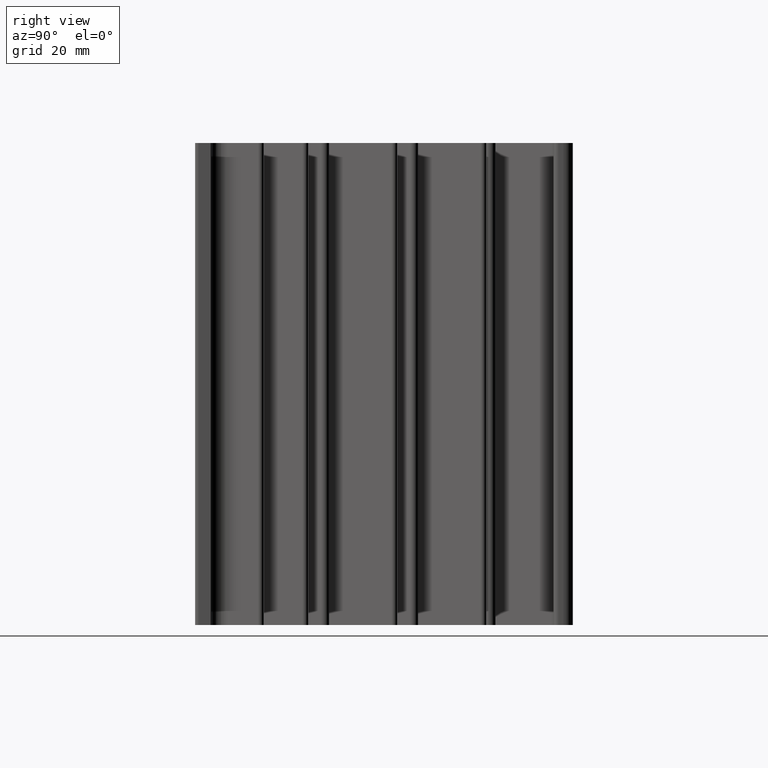
[diagram: clean part render]
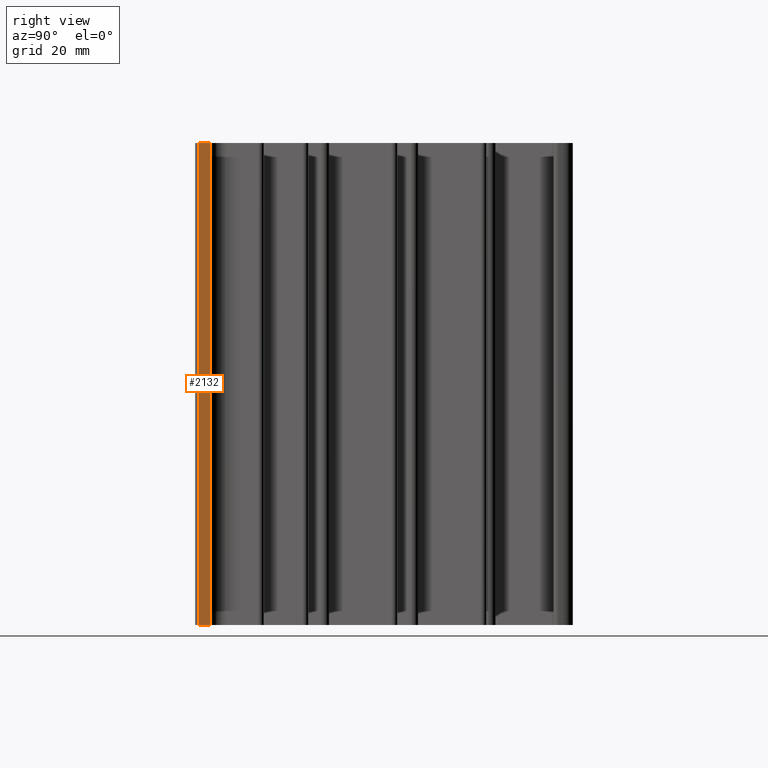
[diagram: same view with one face highlighted and labeled with its STEP entity id]
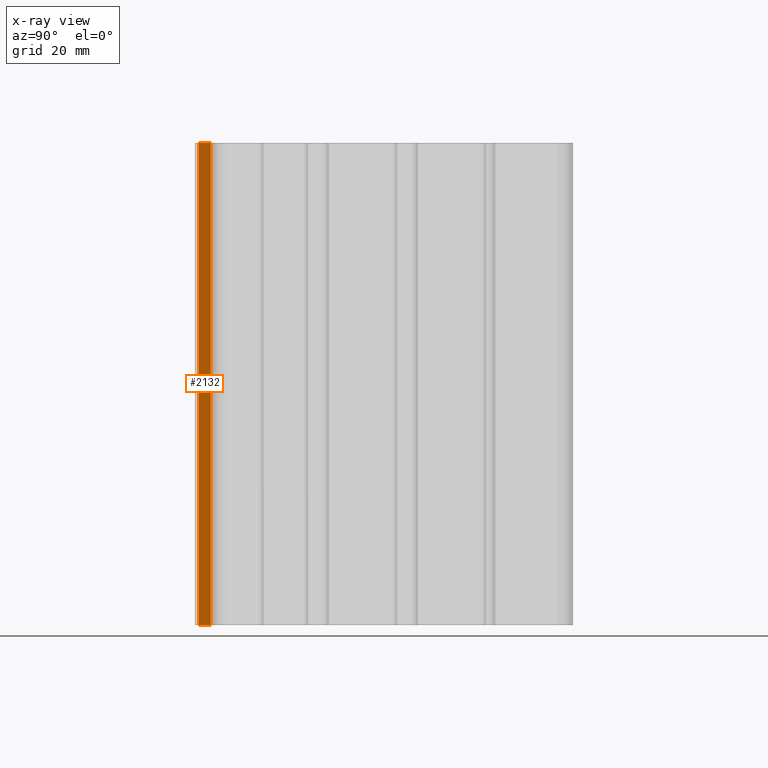
[diagram: x-ray of the same camera — body ghosted, the highlighted face saturated]
A machine part, right view. The second image highlights one B-rep face of the part: STEP entity #2132.
The next image is the same camera in x-ray: the body ghosted, the highlighted face saturated — about 0% of this face is hidden behind the body in this view.
In plain terms, the highlighted planar face has unit normal (-1, -0, 0).
Its self-contained STEP definition (entity closure, byte-faithful):
#23 = EDGE_CURVE ( 'NONE', #4043, #2128, #1433, .T. ) ;
#122 = VECTOR ( 'NONE', #3496, 1000.000000000000000 ) ;
#200 = CARTESIAN_POINT ( 'NONE',  ( 41.50000000000000000, -38.75000000000070344, -50.00000000000000000 ) ) ;
#225 = VECTOR ( 'NONE', #3549, 1000.000000000000000 ) ;
#240 = DIRECTION ( 'NONE',  ( -1.000000000000000000, -2.775557561563012047E-15, 0.0000000000000000000 ) ) ;
#460 = LINE ( 'NONE', #4465, #3733 ) ;
#502 = VECTOR ( 'NONE', #2314, 1000.000000000000000 ) ;
#579 = CARTESIAN_POINT ( 'NONE',  ( 41.50000000000000000, -38.75000000000081002, -50.00000000000000000 ) ) ;
#598 = VERTEX_POINT ( 'NONE', #603 ) ;
#603 = CARTESIAN_POINT ( 'NONE',  ( 41.49999999999999289, -36.25000000000092371, 50.00000000000000000 ) ) ;
#667 = EDGE_CURVE ( 'NONE', #3872, #598, #460, .T. ) ;
#668 = CARTESIAN_POINT ( 'NONE',  ( 41.49999999999999289, -36.25000000000092371, -50.00000000000000000 ) ) ;
#959 = FACE_OUTER_BOUND ( 'NONE', #1065, .T. ) ;
#1062 = LINE ( 'NONE', #3201, #225 ) ;
#1065 = EDGE_LOOP ( 'NONE', ( #3548, #4325, #3865, #1791 ) ) ;
#1086 = CARTESIAN_POINT ( 'NONE',  ( 41.50000000000000000, -38.75000000000081002, 50.00000000000000000 ) ) ;
#1433 = LINE ( 'NONE', #579, #122 ) ;
#1461 = LINE ( 'NONE', #1580, #502 ) ;
#1580 = CARTESIAN_POINT ( 'NONE',  ( 41.50000000000000000, -38.75000000000070344, 50.00000000000000000 ) ) ;
#1791 = ORIENTED_EDGE ( 'NONE', *, *, #3259, .T. ) ;
#1985 = AXIS2_PLACEMENT_3D ( 'NONE', #1086, #240, #3802 ) ;
#2128 = VERTEX_POINT ( 'NONE', #668 ) ;
#2132 = ADVANCED_FACE ( 'NONE', ( #959 ), #2809, .F. ) ;
#2314 = DIRECTION ( 'NONE',  ( -0.0000000000000000000, -0.0000000000000000000, -1.000000000000000000 ) ) ;
#2533 = DIRECTION ( 'NONE',  ( -2.775557561563012047E-15, 1.000000000000000000, 0.0000000000000000000 ) ) ;
#2708 = EDGE_CURVE ( 'NONE', #598, #2128, #1062, .T. ) ;
#2809 = PLANE ( 'NONE',  #1985 ) ;
#3042 = CARTESIAN_POINT ( 'NONE',  ( 41.50000000000000000, -38.75000000000070344, 50.00000000000000000 ) ) ;
#3201 = CARTESIAN_POINT ( 'NONE',  ( 41.49999999999999289, -36.25000000000092371, 50.00000000000000000 ) ) ;
#3259 = EDGE_CURVE ( 'NONE', #3872, #4043, #1461, .T. ) ;
#3496 = DIRECTION ( 'NONE',  ( -2.775557561563012047E-15, 1.000000000000000000, 0.0000000000000000000 ) ) ;
#3548 = ORIENTED_EDGE ( 'NONE', *, *, #23, .T. ) ;
#3549 = DIRECTION ( 'NONE',  ( -0.0000000000000000000, -0.0000000000000000000, -1.000000000000000000 ) ) ;
#3733 = VECTOR ( 'NONE', #2533, 1000.000000000000000 ) ;
#3802 = DIRECTION ( 'NONE',  ( 2.775557561563012047E-15, -1.000000000000000000, 0.0000000000000000000 ) ) ;
#3865 = ORIENTED_EDGE ( 'NONE', *, *, #667, .F. ) ;
#3872 = VERTEX_POINT ( 'NONE', #3042 ) ;
#4043 = VERTEX_POINT ( 'NONE', #200 ) ;
#4325 = ORIENTED_EDGE ( 'NONE', *, *, #2708, .F. ) ;
#4465 = CARTESIAN_POINT ( 'NONE',  ( 41.50000000000000000, -38.75000000000081002, 50.00000000000000000 ) ) ;